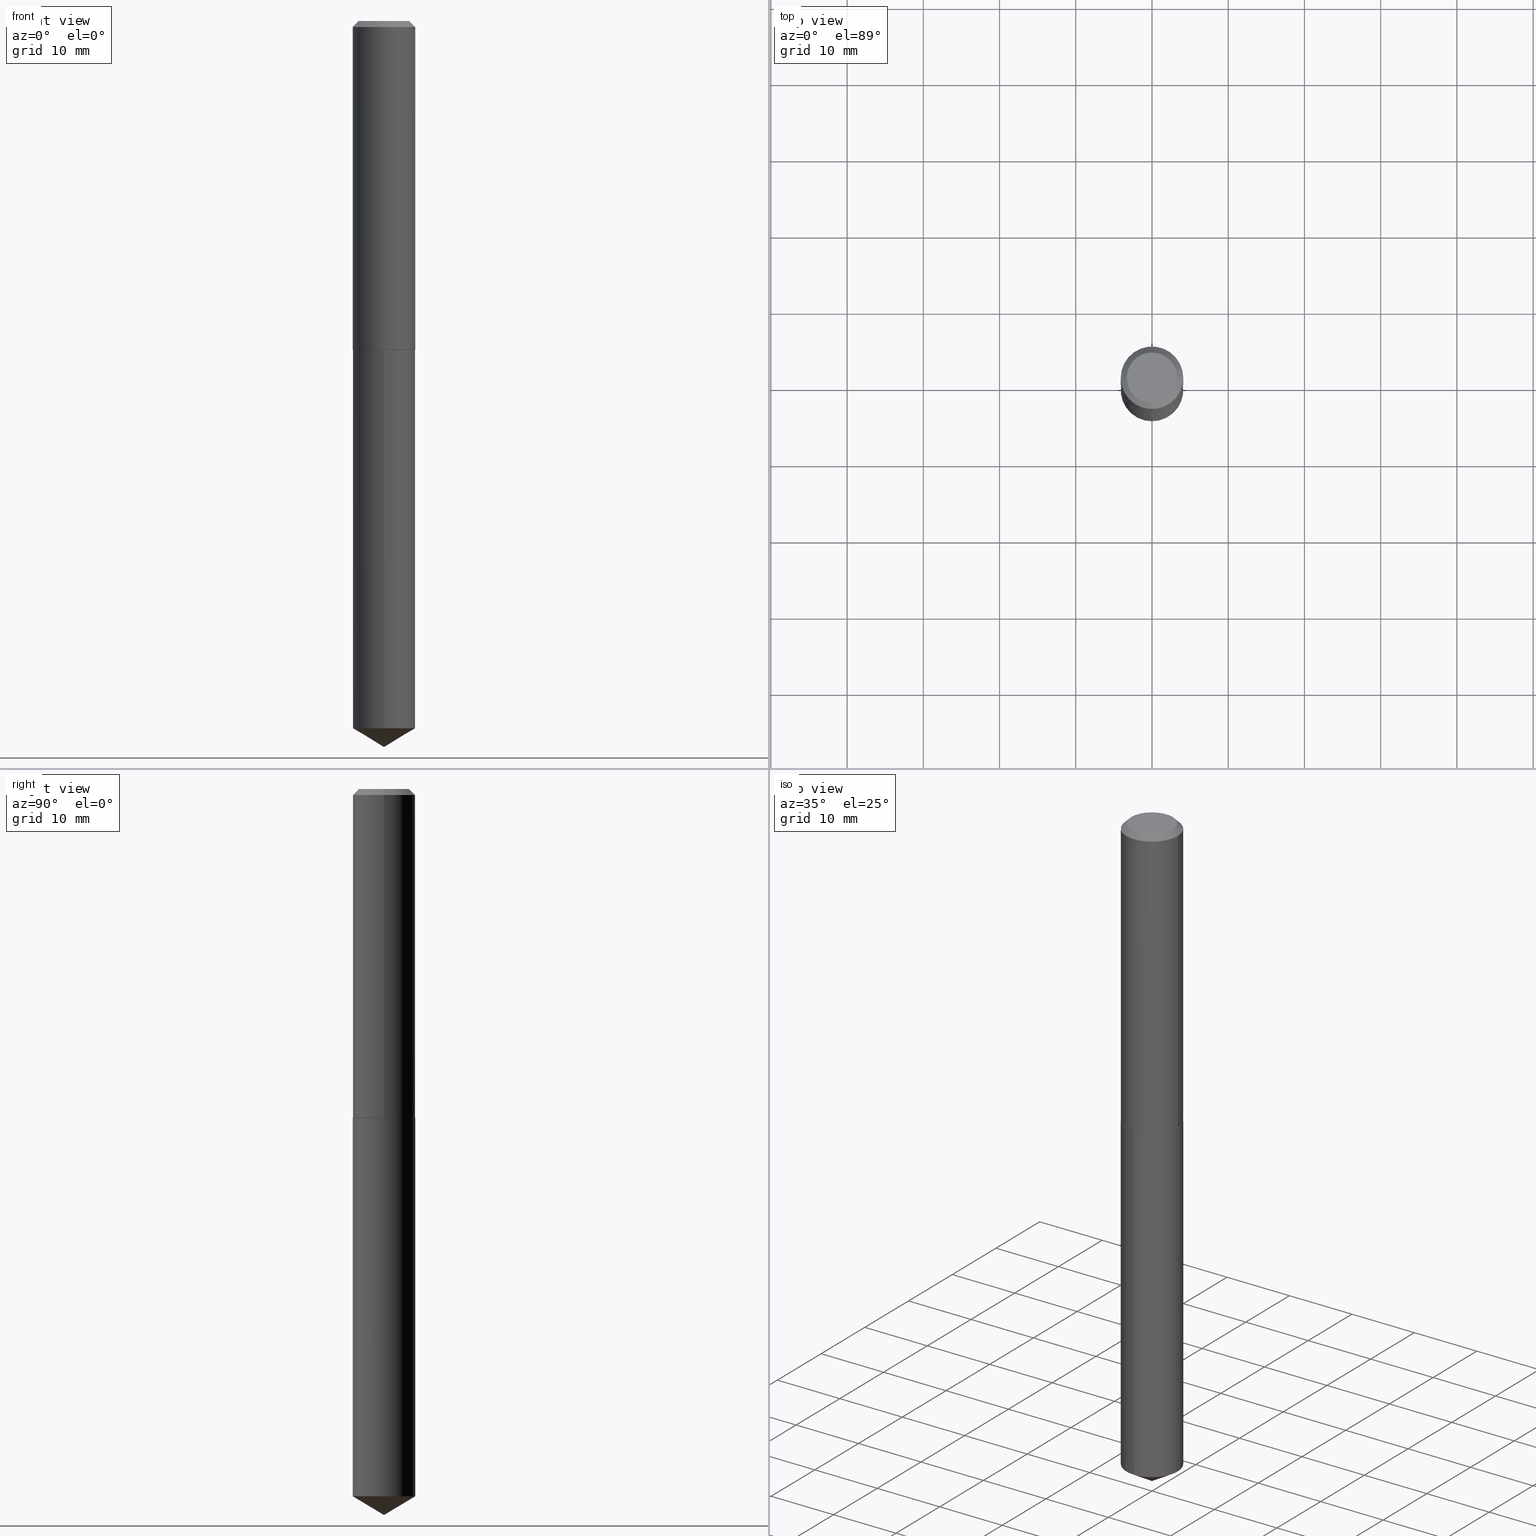
[diagram: canonical four-view strip — front | top / right | iso, engineering-drawing reading convention]
A machine part, canonical four-view strip (front | top / right | iso — engineering-drawing reading convention). The complete STEP part file that produces these views, byte-faithful:
ISO-10303-21;
HEADER;
FILE_DESCRIPTION (( 'STEP AP203' ),
    '1' );
FILE_NAME ('51216.STEP',
    '2024-04-22T18:39:43',
    ( '' ),
    ( '' ),
    'SwSTEP 2.0',
    'SolidWorks 2023',
    '' );
FILE_SCHEMA (( 'CONFIG_CONTROL_DESIGN' ));
ENDSEC;

DATA;
#1 = CARTESIAN_POINT ( 'NONE',  ( 4.152406032902361793E-29, -5.928535313355661989E-15, -1.697999999999999954 ) ) ;
#2 = DIRECTION ( 'NONE',  ( -2.445468806185136597E-29, 3.491481338843145583E-15, 1.000000000000000000 ) ) ;
#3 = CARTESIAN_POINT ( 'NONE',  ( 4.151183298499269552E-29, -5.926789572686240485E-15, -1.697500000000000231 ) ) ;
#4 = ORIENTED_EDGE ( 'NONE', *, *, #227, .F. ) ;
#5 = CARTESIAN_POINT ( 'NONE',  ( 0.1615000000000001990, -7.054538045132573600E-15, -1.697500000000000231 ) ) ;
#6 = CONICAL_SURFACE ( 'NONE', #164, 0.1615000000000001990, 0.7853981633973459164 ) ;
#7 = ORIENTED_EDGE ( 'NONE', *, *, #188, .T. ) ;
#8 = ADVANCED_FACE ( 'NONE', ( #92 ), #117, .F. ) ;
#9 = ORIENTED_EDGE ( 'NONE', *, *, #113, .T. ) ;
#10 = DIRECTION ( 'NONE',  ( -6.982962677686266711E-15, -1.000000000000000000, 3.383093490605898500E-15 ) ) ;
#11 = CARTESIAN_POINT ( 'NONE',  ( 4.152406032902361793E-29, -5.928535313355661989E-15, -1.697999999999999954 ) ) ;
#12 = AXIS2_PLACEMENT_3D ( 'NONE', #249, #367, #71 ) ;
#13 = ORIENTED_EDGE ( 'NONE', *, *, #166, .F. ) ;
#14 = PERSON_AND_ORGANIZATION ( #21, #36 ) ;
#15 = DIRECTION ( 'NONE',  ( -1.000000000000000000, 6.982962677686266711E-15, 0.000000000000000000 ) ) ;
#16 = CARTESIAN_POINT ( 'NONE',  ( 9.170819115654799481E-29, -1.309261302843134438E-14, -3.750000000000000000 ) ) ;
#17 = ORIENTED_EDGE ( 'NONE', *, *, #316, .F. ) ;
#18 = APPROVAL_DATE_TIME ( #288, #369 ) ;
#19 = VERTEX_POINT ( 'NONE', #210 ) ;
#20 = APPROVAL_ROLE ( '' ) ;
#21 = PERSON ( 'UNSPECIFIED', 'UNSPECIFIED', 'UNSPECIFIED', ('UNSPECIFIED'), ('UNSPECIFIED'), ('UNSPECIFIED') ) ;
#22 = AXIS2_PLACEMENT_3D ( 'NONE', #1, #331, #63 ) ;
#23 = APPROVAL_PERSON_ORGANIZATION ( #57, #382, #20 ) ;
#24 = ADVANCED_FACE ( 'NONE', ( #206 ), #326, .T. ) ;
#25 = DIRECTION ( 'NONE',  ( -2.445551110591778788E-29, 3.491363474248358107E-15, 1.000000000000000000 ) ) ;
#26 = ADVANCED_FACE ( 'NONE', ( #99 ), #124, .T. ) ;
#27 = COORDINATED_UNIVERSAL_TIME_OFFSET ( 5, 0, .BEHIND. ) ;
#28 = VERTEX_POINT ( 'NONE', #361 ) ;
#29 = PERSON_AND_ORGANIZATION ( #21, #36 ) ;
#30 = CARTESIAN_POINT ( 'NONE',  ( 7.642090019328604414E-31, -1.091087918388490513E-16, -0.03125000000000021511 ) ) ;
#31 = VECTOR ( 'NONE', #136, 39.37007874015748143 ) ;
#32 = CARTESIAN_POINT ( 'NONE',  ( -8.711086287524120432E-28, 1.243624417291543540E-13, 35.62007874015748143 ) ) ;
#33 = CARTESIAN_POINT ( 'NONE',  ( 7.642090019328604414E-31, -1.091087918388490513E-16, -0.03125000000000021511 ) ) ;
#34 = LINE ( 'NONE', #332, #149 ) ;
#35 = AXIS2_PLACEMENT_3D ( 'NONE', #307, #220, #282 ) ;
#36 = ORGANIZATION ( 'UNSPECIFIED', 'UNSPECIFIED', '' ) ;
#37 = CARTESIAN_POINT ( 'NONE',  ( 4.151183298499269552E-29, -5.926789572686240485E-15, -1.697500000000000231 ) ) ;
#38 = DIRECTION ( 'NONE',  ( -2.445551110591778788E-29, 3.491363474248358107E-15, 1.000000000000000000 ) ) ;
#39 = CC_DESIGN_DATE_AND_TIME_ASSIGNMENT ( #292, #325, ( #323 ) ) ;
#40 = ORIENTED_EDGE ( 'NONE', *, *, #64, .F. ) ;
#41 = ADVANCED_FACE ( 'NONE', ( #217 ), #208, .T. ) ;
#42 = APPLICATION_PROTOCOL_DEFINITION ( 'international standard', 'config_control_design', 1994, #306 ) ;
#43 = DIRECTION ( 'NONE',  ( -2.445551110591778788E-29, 3.491363474248358107E-15, 1.000000000000000000 ) ) ;
#44 = CARTESIAN_POINT ( 'NONE',  ( 9.170816664719170944E-29, -1.309261302843134438E-14, -3.750000000000000000 ) ) ;
#45 = ORIENTED_EDGE ( 'NONE', *, *, #81, .T. ) ;
#46 = DIRECTION ( 'NONE',  ( 1.000000000000000000, 0.000000000000000000, 0.000000000000000000 ) ) ;
#47 = CLOSED_SHELL ( 'NONE', ( #163, #24, #278, #173, #255, #26, #390, #8 ) ) ;
#48 = VECTOR ( 'NONE', #242, 39.37007874015748143 ) ;
#49 = EDGE_CURVE ( 'NONE', #70, #286, #328, .T. ) ;
#50 = EDGE_LOOP ( 'NONE', ( #226, #181, #381, #287 ) ) ;
#51 = EDGE_LOOP ( 'NONE', ( #308, #373, #56, #146 ) ) ;
#52 = EDGE_CURVE ( 'NONE', #138, #205, #34, .T. ) ;
#53 = APPLICATION_CONTEXT ( 'configuration controlled 3d designs of mechanical parts and assemblies' ) ;
#54 = ORIENTED_EDGE ( 'NONE', *, *, #123, .T. ) ;
#55 = AXIS2_PLACEMENT_3D ( 'NONE', #60, #333, #302 ) ;
#56 = ORIENTED_EDGE ( 'NONE', *, *, #126, .F. ) ;
#57 = PERSON_AND_ORGANIZATION ( #21, #36 ) ;
#58 = EDGE_LOOP ( 'NONE', ( #352, #195, #171, #261 ) ) ;
#59 = DATE_TIME_ROLE ( 'creation_date' ) ;
#60 = CARTESIAN_POINT ( 'NONE',  ( -1.048192441068269648E-47, 1.496541006063948366E-33, 4.286263797015758030E-19 ) ) ;
#61 = CALENDAR_DATE ( 2024, 22, 4 ) ;
#62 = LOCAL_TIME ( 14, 39, 43.00000000000000000, #27 ) ;
#63 = DIRECTION ( 'NONE',  ( 1.000000000000000000, -6.982962677686266711E-15, 0.000000000000000000 ) ) ;
#64 = EDGE_CURVE ( 'NONE', #116, #138, #299, .T. ) ;
#65 = CARTESIAN_POINT ( 'NONE',  ( 0.000000000000000000, 0.000000000000000000, 0.000000000000000000 ) ) ;
#66 = DIRECTION ( 'NONE',  ( -5.985567269335963368E-15, -0.8571673007021132218, 0.5150380749100526012 ) ) ;
#67 = MANIFOLD_SOLID_BREP ( 'Body-Move/Copy2[1]', #168 ) ;
#68 = CARTESIAN_POINT ( 'NONE',  ( -0.1615000000000000047, -1.870422664009981579E-15, -0.03125000000000021511 ) ) ;
#69 = ADVANCED_BREP_SHAPE_REPRESENTATION ( '51216', ( #67, #337, #215 ), #386 ) ;
#70 = VERTEX_POINT ( 'NONE', #300 ) ;
#71 = DIRECTION ( 'NONE',  ( -6.982962677686266711E-15, -1.000000000000000000, 3.383093490605898500E-15 ) ) ;
#72 = AXIS2_PLACEMENT_3D ( 'NONE', #37, #2, #130 ) ;
#73 = DIRECTION ( 'NONE',  ( -2.445468806185136597E-29, 3.491481338843145583E-15, 1.000000000000000000 ) ) ;
#74 = MECHANICAL_CONTEXT ( 'NONE', #306, 'mechanical' ) ;
#75 = EDGE_LOOP ( 'NONE', ( #4, #320, #9, #17 ) ) ;
#76 =( LENGTH_UNIT ( ) NAMED_UNIT ( * ) SI_UNIT ( $, .METRE. ) );
#77 = DIRECTION ( 'NONE',  ( -2.445551110591778788E-29, 3.491363474248358107E-15, 1.000000000000000000 ) ) ;
#78 = CIRCLE ( 'NONE', #134, 0.1615000000000001990 ) ;
#79 = CC_DESIGN_APPROVAL ( #382, ( #140 ) ) ;
#80 = ORIENTED_EDGE ( 'NONE', *, *, #318, .F. ) ;
#81 = EDGE_CURVE ( 'NONE', #324, #28, #94, .T. ) ;
#82 = EDGE_CURVE ( 'NONE', #153, #286, #301, .T. ) ;
#83 = DIRECTION ( 'NONE',  ( -1.000000000000000000, 6.982962677686265922E-15, -4.876176775795935793E-29 ) ) ;
#84 = APPROVAL_STATUS ( 'not_yet_approved' ) ;
#85 = DIRECTION ( 'NONE',  ( 6.090539988449799735E-15, 0.8571673007021168855, 0.5150380749100466060 ) ) ;
#86 = ORIENTED_EDGE ( 'NONE', *, *, #275, .T. ) ;
#87 = CIRCLE ( 'NONE', #346, 0.1615000000000000047 ) ;
#88 = DATE_AND_TIME ( #374, #98 ) ;
#89 = CIRCLE ( 'NONE', #303, 0.1610000000000004206 ) ;
#90 = AXIS2_PLACEMENT_3D ( 'NONE', #112, #108, #15 ) ;
#91 = PRODUCT_DEFINITION_SHAPE ( 'NONE', 'NONE',  #140 ) ;
#92 = FACE_OUTER_BOUND ( 'NONE', #263, .T. ) ;
#93 = APPROVAL_ROLE ( '' ) ;
#94 = LINE ( 'NONE', #96, #177 ) ;
#95 = APPROVAL_STATUS ( 'not_yet_approved' ) ;
#96 = CARTESIAN_POINT ( 'NONE',  ( 9.170537158954214009E-29, -1.309301329659524274E-14, -3.750000000000000000 ) ) ;
#97 = AXIS2_PLACEMENT_3D ( 'NONE', #65, #162, #125 ) ;
#98 = LOCAL_TIME ( 14, 39, 43.00000000000000000, #182 ) ;
#99 = FACE_OUTER_BOUND ( 'NONE', #253, .T. ) ;
#100 = DIMENSIONAL_EXPONENTS ( 1.000000000000000000, 0.000000000000000000, 0.000000000000000000, 0.000000000000000000, 0.000000000000000000, 0.000000000000000000, 0.000000000000000000 ) ;
#101 = CARTESIAN_POINT ( 'NONE',  ( -0.1615000000000001990, -4.779263054433677272E-15, -1.697500000000000231 ) ) ;
#102 = CIRCLE ( 'NONE', #228, 0.1615000000000000047 ) ;
#103 = EDGE_CURVE ( 'NONE', #230, #28, #314, .T. ) ;
#104 = LOCAL_TIME ( 14, 39, 43.00000000000000000, #262 ) ;
#105 = CARTESIAN_POINT ( 'NONE',  ( 4.152406032902361793E-29, -5.928535313355661989E-15, -1.697999999999999954 ) ) ;
#106 = DIRECTION ( 'NONE',  ( -2.445551110591778788E-29, 3.491363474248358107E-15, 1.000000000000000000 ) ) ;
#107 = ORIENTED_EDGE ( 'NONE', *, *, #126, .T. ) ;
#108 = DIRECTION ( 'NONE',  ( 2.445468806185136597E-29, -3.491481338843145583E-15, -1.000000000000000000 ) ) ;
#109 = ORIENTED_EDGE ( 'NONE', *, *, #297, .F. ) ;
#110 = DIRECTION ( 'NONE',  ( -6.982962677686269077E-15, -1.000000000000000000, 3.468864327941552799E-15 ) ) ;
#111 = CARTESIAN_POINT ( 'NONE',  ( 4.151183298499269552E-29, -5.926789572686240485E-15, -1.697500000000000231 ) ) ;
#112 = CARTESIAN_POINT ( 'NONE',  ( 7.642090019328604414E-31, -1.091087918388490513E-16, -0.03125000000000021511 ) ) ;
#113 = EDGE_CURVE ( 'NONE', #28, #145, #158, .T. ) ;
#114 = DIRECTION ( 'NONE',  ( -2.445468806185136597E-29, 3.491481338843145583E-15, 1.000000000000000000 ) ) ;
#115 = CIRCLE ( 'NONE', #330, 0.1615000000000000047 ) ;
#116 = VERTEX_POINT ( 'NONE', #191 ) ;
#117 = PLANE ( 'NONE',  #353 ) ;
#118 = SECURITY_CLASSIFICATION_LEVEL ( 'unclassified' ) ;
#119 = DIRECTION ( 'NONE',  ( -6.982962677686266711E-15, -1.000000000000000000, 3.383093490605898500E-15 ) ) ;
#120 = ORIENTED_EDGE ( 'NONE', *, *, #131, .F. ) ;
#121 = FACE_OUTER_BOUND ( 'NONE', #238, .T. ) ;
#122 = EDGE_LOOP ( 'NONE', ( #385, #175, #86, #338 ) ) ;
#123 = EDGE_CURVE ( 'NONE', #153, #199, #222, .T. ) ;
#124 = CYLINDRICAL_SURFACE ( 'NONE', #97, 0.1615000000000001157 ) ;
#125 = DIRECTION ( 'NONE',  ( 1.000000000000000000, -6.982962677686265922E-15, 4.876176775795935232E-29 ) ) ;
#126 = EDGE_CURVE ( 'NONE', #70, #138, #161, .T. ) ;
#127 = AXIS2_PLACEMENT_3D ( 'NONE', #388, #43, #10 ) ;
#128 = LOCAL_TIME ( 14, 39, 43.00000000000000000, #241 ) ;
#129 = DIRECTION ( 'NONE',  ( -6.982962677686269077E-15, -1.000000000000000000, 3.468864327941552799E-15 ) ) ;
#130 = DIRECTION ( 'NONE',  ( 1.000000000000000000, -6.982962677686266711E-15, 0.000000000000000000 ) ) ;
#131 = EDGE_CURVE ( 'NONE', #116, #19, #309, .T. ) ;
#132 = DIRECTION ( 'NONE',  ( 1.000000000000000000, -6.982962677686266711E-15, 0.000000000000000000 ) ) ;
#133 = ORIENTED_EDGE ( 'NONE', *, *, #200, .T. ) ;
#134 = AXIS2_PLACEMENT_3D ( 'NONE', #3, #279, #132 ) ;
#135 = CIRCLE ( 'NONE', #229, 0.1302500000000000047 ) ;
#136 = DIRECTION ( 'NONE',  ( -2.445551110591778788E-29, 3.491363474248358107E-15, 1.000000000000000000 ) ) ;
#137 = DIRECTION ( 'NONE',  ( 6.982962677686265922E-15, 1.000000000000000000, -3.491363474248358107E-15 ) ) ;
#138 = VERTEX_POINT ( 'NONE', #101 ) ;
#139 = PERSON_AND_ORGANIZATION_ROLE ( 'design_owner' ) ;
#140 = PRODUCT_DEFINITION ( 'UNKNOWN', '', #236, #380 ) ;
#141 = CONICAL_SURFACE ( 'NONE', #284, 0.1615000000000001990, 0.7853981633973459164 ) ;
#142 = LINE ( 'NONE', #5, #202 ) ;
#143 = CC_DESIGN_APPROVAL ( #221, ( #236 ) ) ;
#144 = LOCAL_TIME ( 14, 39, 43.00000000000000000, #180 ) ;
#145 = VERTEX_POINT ( 'NONE', #334 ) ;
#146 = ORIENTED_EDGE ( 'NONE', *, *, #200, .F. ) ;
#147 = ORIENTED_EDGE ( 'NONE', *, *, #311, .F. ) ;
#148 = APPROVAL_ROLE ( '' ) ;
#149 = VECTOR ( 'NONE', #358, 39.37007874015748143 ) ;
#150 = ORIENTED_EDGE ( 'NONE', *, *, #103, .F. ) ;
#151 = APPROVAL_STATUS ( 'not_yet_approved' ) ;
#152 = DIRECTION ( 'NONE',  ( -0.7071067811865451302, 2.468850131082231817E-15, -0.7071067811865499042 ) ) ;
#153 = VERTEX_POINT ( 'NONE', #389 ) ;
#154 = ORIENTED_EDGE ( 'NONE', *, *, #216, .F. ) ;
#155 = CALENDAR_DATE ( 2024, 22, 4 ) ;
#156 = DIRECTION ( 'NONE',  ( -2.445468806185136597E-29, 3.491481338843145583E-15, 1.000000000000000000 ) ) ;
#157 = PRODUCT_RELATED_PRODUCT_CATEGORY ( 'detail', '', ( #356 ) ) ;
#158 = LINE ( 'NONE', #273, #48 ) ;
#159 = DIRECTION ( 'NONE',  ( 1.000000000000000000, -6.982962677686266711E-15, 0.000000000000000000 ) ) ;
#160 = DIRECTION ( 'NONE',  ( 0.7071067811865451302, -7.319954787623248157E-15, -0.7071067811865499042 ) ) ;
#161 = CIRCLE ( 'NONE', #72, 0.1615000000000001990 ) ;
#162 = DIRECTION ( 'NONE',  ( -2.445468806185136597E-29, 3.491481338843145583E-15, 1.000000000000000000 ) ) ;
#163 = ADVANCED_FACE ( 'NONE', ( #189 ), #364, .T. ) ;
#164 = AXIS2_PLACEMENT_3D ( 'NONE', #310, #319, #257 ) ;
#165 = DIRECTION ( 'NONE',  ( -6.982962677686266711E-15, -1.000000000000000000, 3.383093490605898500E-15 ) ) ;
#166 = EDGE_CURVE ( 'NONE', #205, #286, #298, .T. ) ;
#167 = PLANE ( 'NONE',  #35 ) ;
#168 = CLOSED_SHELL ( 'NONE', ( #250, #321, #41, #169, #362 ) ) ;
#169 = ADVANCED_FACE ( 'NONE', ( #268 ), #271, .T. ) ;
#170 = LINE ( 'NONE', #201, #247 ) ;
#171 = ORIENTED_EDGE ( 'NONE', *, *, #318, .T. ) ;
#172 = CARTESIAN_POINT ( 'NONE',  ( 0.000000000000000000, 0.000000000000000000, 0.000000000000000000 ) ) ;
#173 = ADVANCED_FACE ( 'NONE', ( #223 ), #167, .F. ) ;
#174 = DIRECTION ( 'NONE',  ( 1.000000000000000000, -6.982962677686266711E-15, 0.000000000000000000 ) ) ;
#175 = ORIENTED_EDGE ( 'NONE', *, *, #339, .F. ) ;
#176 = FACE_OUTER_BOUND ( 'NONE', #51, .T. ) ;
#177 = VECTOR ( 'NONE', #66, 39.37007874015748143 ) ;
#178 = ORIENTED_EDGE ( 'NONE', *, *, #49, .F. ) ;
#179 = CONICAL_SURFACE ( 'NONE', #90, 0.1615000000000000047, 0.7853981633974449483 ) ;
#180 = COORDINATED_UNIVERSAL_TIME_OFFSET ( 5, 0, .BEHIND. ) ;
#181 = ORIENTED_EDGE ( 'NONE', *, *, #227, .T. ) ;
#182 = COORDINATED_UNIVERSAL_TIME_OFFSET ( 5, 0, .BEHIND. ) ;
#183 = DIRECTION ( 'NONE',  ( 2.445468806185136597E-29, -3.491481338843145583E-15, -1.000000000000000000 ) ) ;
#184 = DATE_AND_TIME ( #155, #62 ) ;
#185 = DIRECTION ( 'NONE',  ( -2.445468806185136877E-29, 3.491481338843145188E-15, 1.000000000000000000 ) ) ;
#186 = VECTOR ( 'NONE', #85, 39.37007874015748143 ) ;
#187 = DATE_AND_TIME ( #379, #104 ) ;
#188 = EDGE_CURVE ( 'NONE', #145, #312, #102, .T. ) ;
#189 = FACE_OUTER_BOUND ( 'NONE', #58, .T. ) ;
#190 = DIRECTION ( 'NONE',  ( 1.000000000000000000, -6.982962677686265922E-15, 4.876176775795935232E-29 ) ) ;
#191 = CARTESIAN_POINT ( 'NONE',  ( -0.1610000000000004206, -4.781912281607787684E-15, -1.697999999999999954 ) ) ;
#192 = VECTOR ( 'NONE', #185, 39.37007874015748143 ) ;
#193 = DIRECTION ( 'NONE',  ( 1.000000000000000000, -6.982962677686266711E-15, 0.000000000000000000 ) ) ;
#194 = DIRECTION ( 'NONE',  ( -2.445468806185136597E-29, 3.491481338843145583E-15, 1.000000000000000000 ) ) ;
#195 = ORIENTED_EDGE ( 'NONE', *, *, #82, .T. ) ;
#196 = AXIS2_PLACEMENT_3D ( 'NONE', #291, #276, #190 ) ;
#197 = FACE_OUTER_BOUND ( 'NONE', #256, .T. ) ;
#198 = ORIENTED_EDGE ( 'NONE', *, *, #316, .T. ) ;
#199 = VERTEX_POINT ( 'NONE', #336 ) ;
#200 = EDGE_CURVE ( 'NONE', #19, #70, #142, .T. ) ;
#201 = CARTESIAN_POINT ( 'NONE',  ( -0.1615000000000000047, 1.018639680607483028E-15, -0.03125000000000021511 ) ) ;
#202 = VECTOR ( 'NONE', #225, 39.37007874015748143 ) ;
#203 = APPROVAL_PERSON_ORGANIZATION ( #29, #221, #148 ) ;
#204 = ORIENTED_EDGE ( 'NONE', *, *, #339, .T. ) ;
#205 = VERTEX_POINT ( 'NONE', #68 ) ;
#206 = FACE_OUTER_BOUND ( 'NONE', #235, .T. ) ;
#207 = LINE ( 'NONE', #16, #186 ) ;
#208 = CONICAL_SURFACE ( 'NONE', #252, 65.52281426576921319, 1.029744258676659863 ) ;
#209 = PERSON_AND_ORGANIZATION_ROLE ( 'design_supplier' ) ;
#210 = CARTESIAN_POINT ( 'NONE',  ( 0.1610000000000004206, -7.052792304463153675E-15, -1.697999999999999954 ) ) ;
#211 = DIRECTION ( 'NONE',  ( -6.982962677686266711E-15, -1.000000000000000000, 3.383093490605898500E-15 ) ) ;
#212 = APPROVAL_DATE_TIME ( #187, #382 ) ;
#213 = CARTESIAN_POINT ( 'NONE',  ( 0.1615000000000001157, -1.127748472446332721E-15, 7.875025492910441462E-30 ) ) ;
#214 = AXIS2_PLACEMENT_3D ( 'NONE', #218, #240, #211 ) ;
#215 = AXIS2_PLACEMENT_3D ( 'NONE', #172, #283, #46 ) ;
#216 = EDGE_CURVE ( 'NONE', #19, #116, #89, .T. ) ;
#217 = FACE_OUTER_BOUND ( 'NONE', #248, .T. ) ;
#218 = CARTESIAN_POINT ( 'NONE',  ( 8.933363102137640764E-29, -1.275401477734378135E-14, -3.652961010027050204 ) ) ;
#219 = VECTOR ( 'NONE', #160, 39.37007874015748143 ) ;
#220 = DIRECTION ( 'NONE',  ( -2.438088387897960049E-29, 3.491481338843145188E-15, 1.000000000000000000 ) ) ;
#221 = APPROVAL ( #151, 'UNSPECIFIED' ) ;
#222 = CIRCLE ( 'NONE', #55, 0.1302500000000000047 ) ;
#223 = FACE_OUTER_BOUND ( 'NONE', #342, .T. ) ;
#224 =( CONVERSION_BASED_UNIT ( 'INCH', #281 ) LENGTH_UNIT ( ) NAMED_UNIT ( #100 ) );
#225 = DIRECTION ( 'NONE',  ( 0.7071067811864750752, -2.468850131081498176E-15, 0.7071067811866199593 ) ) ;
#226 = ORIENTED_EDGE ( 'NONE', *, *, #297, .T. ) ;
#227 = EDGE_CURVE ( 'NONE', #230, #312, #305, .T. ) ;
#228 = AXIS2_PLACEMENT_3D ( 'NONE', #11, #38, #165 ) ;
#229 = AXIS2_PLACEMENT_3D ( 'NONE', #254, #73, #371 ) ;
#230 = VERTEX_POINT ( 'NONE', #363 ) ;
#231 = PERSON_AND_ORGANIZATION_ROLE ( 'classification_officer' ) ;
#232 = CARTESIAN_POINT ( 'NONE',  ( -5.240962205341348242E-48, 7.482705030319741831E-34, 2.143131898507879015E-19 ) ) ;
#233 = EDGE_CURVE ( 'NONE', #138, #70, #78, .T. ) ;
#234 = PERSON_AND_ORGANIZATION ( #21, #36 ) ;
#235 = EDGE_LOOP ( 'NONE', ( #107, #280, #80, #178 ) ) ;
#236 = PRODUCT_DEFINITION_FORMATION_WITH_SPECIFIED_SOURCE ( 'ANY', '', #356, .NOT_KNOWN. ) ;
#237 = CC_DESIGN_DATE_AND_TIME_ASSIGNMENT ( #184, #59, ( #140 ) ) ;
#238 = EDGE_LOOP ( 'NONE', ( #348, #258, #109 ) ) ;
#239 = SHAPE_DEFINITION_REPRESENTATION ( #91, #69 ) ;
#240 = DIRECTION ( 'NONE',  ( -2.445551110591778788E-29, 3.491363474248358107E-15, 1.000000000000000000 ) ) ;
#241 = COORDINATED_UNIVERSAL_TIME_OFFSET ( 5, 0, .BEHIND. ) ;
#242 = DIRECTION ( 'NONE',  ( -2.445551110591778788E-29, 3.491363474248358107E-15, 1.000000000000000000 ) ) ;
#243 = APPROVAL_PERSON_ORGANIZATION ( #350, #369, #93 ) ;
#244 = DIRECTION ( 'NONE',  ( -0.7071067811864750752, 7.493145998870092258E-15, 0.7071067811866199593 ) ) ;
#245 = CARTESIAN_POINT ( 'NONE',  ( 0.1615000000000000047, -1.217079218478951328E-15, -0.03125000000000021511 ) ) ;
#246 = CC_DESIGN_PERSON_AND_ORGANIZATION_ASSIGNMENT ( #294, #209, ( #236 ) ) ;
#247 = VECTOR ( 'NONE', #152, 39.37007874015748143 ) ;
#248 = EDGE_LOOP ( 'NONE', ( #147, #45, #150 ) ) ;
#249 = CARTESIAN_POINT ( 'NONE',  ( 4.152406032902361793E-29, -5.928535313355661989E-15, -1.697999999999999954 ) ) ;
#250 = ADVANCED_FACE ( 'NONE', ( #340 ), #366, .T. ) ;
#251 = PLANE ( 'NONE',  #267 ) ;
#252 = AXIS2_PLACEMENT_3D ( 'NONE', #32, #270, #129 ) ;
#253 = EDGE_LOOP ( 'NONE', ( #365, #355, #317, #13 ) ) ;
#254 = CARTESIAN_POINT ( 'NONE',  ( -1.048192441068269648E-47, 1.496541006063948366E-33, 4.286263797015758030E-19 ) ) ;
#255 = ADVANCED_FACE ( 'NONE', ( #197 ), #6, .T. ) ;
#256 = EDGE_LOOP ( 'NONE', ( #40, #378, #133, #293 ) ) ;
#257 = DIRECTION ( 'NONE',  ( 1.000000000000000000, -6.982962677686266711E-15, 0.000000000000000000 ) ) ;
#258 = ORIENTED_EDGE ( 'NONE', *, *, #311, .T. ) ;
#259 = APPLICATION_PROTOCOL_DEFINITION ( 'international standard', 'config_control_design', 1994, #53 ) ;
#260 = AXIS2_PLACEMENT_3D ( 'NONE', #384, #114, #174 ) ;
#261 = ORIENTED_EDGE ( 'NONE', *, *, #275, .F. ) ;
#262 = COORDINATED_UNIVERSAL_TIME_OFFSET ( 5, 0, .BEHIND. ) ;
#263 = EDGE_LOOP ( 'NONE', ( #204, #54 ) ) ;
#264 = DIRECTION ( 'NONE',  ( -6.982962677686266711E-15, -1.000000000000000000, 3.383093490605898500E-15 ) ) ;
#265 = EDGE_LOOP ( 'NONE', ( #7, #198 ) ) ;
#266 = APPROVAL_DATE_TIME ( #88, #221 ) ;
#267 = AXIS2_PLACEMENT_3D ( 'NONE', #343, #368, #137 ) ;
#268 = FACE_OUTER_BOUND ( 'NONE', #75, .T. ) ;
#269 = PERSON_AND_ORGANIZATION ( #21, #36 ) ;
#270 = DIRECTION ( 'NONE',  ( -2.445551110591778788E-29, 3.491363474248358107E-15, 1.000000000000000000 ) ) ;
#271 = CYLINDRICAL_SURFACE ( 'NONE', #127, 0.1615000000000000047 ) ;
#272 = CC_DESIGN_PERSON_AND_ORGANIZATION_ASSIGNMENT ( #14, #139, ( #356 ) ) ;
#273 = CARTESIAN_POINT ( 'NONE',  ( -1.127748472446290517E-15, -0.1615000000000059444, -1.697999999999999510 ) ) ;
#274 = VECTOR ( 'NONE', #244, 39.37007874015748143 ) ;
#275 = EDGE_CURVE ( 'NONE', #199, #205, #170, .T. ) ;
#276 = DIRECTION ( 'NONE',  ( -2.445468806185136597E-29, 3.491481338843145583E-15, 1.000000000000000000 ) ) ;
#277 = CARTESIAN_POINT ( 'NONE',  ( 1.147526518252603051E-15, 0.1614999999999940650, -1.698000000000000620 ) ) ;
#278 = ADVANCED_FACE ( 'NONE', ( #176 ), #141, .T. ) ;
#279 = DIRECTION ( 'NONE',  ( -2.445468806185136597E-29, 3.491481338843145583E-15, 1.000000000000000000 ) ) ;
#280 = ORIENTED_EDGE ( 'NONE', *, *, #52, .T. ) ;
#281 = LENGTH_MEASURE_WITH_UNIT ( LENGTH_MEASURE( 0.02539999999999999897 ), #76 );
#282 = DIRECTION ( 'NONE',  ( 1.000000000000000000, -6.982962677686265922E-15, 4.876176775795935793E-29 ) ) ;
#283 = DIRECTION ( 'NONE',  ( 0.000000000000000000, 0.000000000000000000, 1.000000000000000000 ) ) ;
#284 = AXIS2_PLACEMENT_3D ( 'NONE', #111, #290, #351 ) ;
#285 = FACE_OUTER_BOUND ( 'NONE', #265, .T. ) ;
#286 = VERTEX_POINT ( 'NONE', #344 ) ;
#287 = ORIENTED_EDGE ( 'NONE', *, *, #113, .F. ) ;
#288 = DATE_AND_TIME ( #61, #128 ) ;
#289 = UNCERTAINTY_MEASURE_WITH_UNIT (LENGTH_MEASURE( 1.000000000000000082E-05 ), #224, 'distance_accuracy_value', 'NONE');
#290 = DIRECTION ( 'NONE',  ( -2.445468806185136597E-29, 3.491481338843145583E-15, 1.000000000000000000 ) ) ;
#291 = CARTESIAN_POINT ( 'NONE',  ( 0.000000000000000000, 0.000000000000000000, 0.000000000000000000 ) ) ;
#292 = DATE_AND_TIME ( #327, #144 ) ;
#293 = ORIENTED_EDGE ( 'NONE', *, *, #233, .F. ) ;
#294 = PERSON_AND_ORGANIZATION ( #21, #36 ) ;
#295 = DIRECTION ( 'NONE',  ( -1.000000000000000000, 6.982962677686266711E-15, 0.000000000000000000 ) ) ;
#296 = PERSON_AND_ORGANIZATION_ROLE ( 'creator' ) ;
#297 = EDGE_CURVE ( 'NONE', #28, #230, #87, .T. ) ;
#298 = CIRCLE ( 'NONE', #335, 0.1615000000000000047 ) ;
#299 = LINE ( 'NONE', #360, #274 ) ;
#300 = CARTESIAN_POINT ( 'NONE',  ( 0.1615000000000001990, -7.054538045132573600E-15, -1.697500000000000231 ) ) ;
#301 = LINE ( 'NONE', #245, #219 ) ;
#302 = DIRECTION ( 'NONE',  ( 1.000000000000000000, -6.982962677686266711E-15, 4.876168088827840652E-29 ) ) ;
#303 = AXIS2_PLACEMENT_3D ( 'NONE', #105, #194, #193 ) ;
#304 = CONICAL_SURFACE ( 'NONE', #315, 65.52281426576921319, 1.029744258676659863 ) ;
#305 = LINE ( 'NONE', #277, #31 ) ;
#306 = APPLICATION_CONTEXT ( 'configuration controlled 3d designs of mechanical parts and assemblies' ) ;
#307 = CARTESIAN_POINT ( 'NONE',  ( 4.152406032902361793E-29, -5.928535313355661989E-15, -1.697999999999999954 ) ) ;
#308 = ORIENTED_EDGE ( 'NONE', *, *, #216, .T. ) ;
#309 = CIRCLE ( 'NONE', #22, 0.1610000000000004206 ) ;
#310 = CARTESIAN_POINT ( 'NONE',  ( 4.151183298499269552E-29, -5.926789572686240485E-15, -1.697500000000000231 ) ) ;
#311 = EDGE_CURVE ( 'NONE', #324, #230, #207, .T. ) ;
#312 = VERTEX_POINT ( 'NONE', #372 ) ;
#313 =( NAMED_UNIT ( * ) SI_UNIT ( $, .STERADIAN. ) SOLID_ANGLE_UNIT ( ) );
#314 = CIRCLE ( 'NONE', #214, 0.1615000000000000047 ) ;
#315 = AXIS2_PLACEMENT_3D ( 'NONE', #341, #106, #110 ) ;
#316 = EDGE_CURVE ( 'NONE', #312, #145, #115, .T. ) ;
#317 = ORIENTED_EDGE ( 'NONE', *, *, #49, .T. ) ;
#318 = EDGE_CURVE ( 'NONE', #286, #205, #375, .T. ) ;
#319 = DIRECTION ( 'NONE',  ( -2.445468806185136597E-29, 3.491481338843145583E-15, 1.000000000000000000 ) ) ;
#320 = ORIENTED_EDGE ( 'NONE', *, *, #103, .T. ) ;
#321 = ADVANCED_FACE ( 'NONE', ( #121 ), #304, .T. ) ;
#322 = AXIS2_PLACEMENT_3D ( 'NONE', #33, #183, #295 ) ;
#323 = SECURITY_CLASSIFICATION ( '', '', #118 ) ;
#324 = VERTEX_POINT ( 'NONE', #44 ) ;
#325 = DATE_TIME_ROLE ( 'classification_date' ) ;
#326 = CYLINDRICAL_SURFACE ( 'NONE', #196, 0.1615000000000001157 ) ;
#327 = CALENDAR_DATE ( 2024, 22, 4 ) ;
#328 = LINE ( 'NONE', #213, #192 ) ;
#329 = CC_DESIGN_PERSON_AND_ORGANIZATION_ASSIGNMENT ( #234, #231, ( #323 ) ) ;
#330 = AXIS2_PLACEMENT_3D ( 'NONE', #377, #77, #264 ) ;
#331 = DIRECTION ( 'NONE',  ( -2.445468806185136597E-29, 3.491481338843145583E-15, 1.000000000000000000 ) ) ;
#332 = CARTESIAN_POINT ( 'NONE',  ( -0.1615000000000001157, 1.147526518252562622E-15, -7.944080170761677510E-30 ) ) ;
#333 = DIRECTION ( 'NONE',  ( -2.445468806185136597E-29, 3.491481338843145583E-15, 1.000000000000000000 ) ) ;
#334 = CARTESIAN_POINT ( 'NONE',  ( -1.127748472446290517E-15, -0.1615000000000059444, -1.697999999999999510 ) ) ;
#335 = AXIS2_PLACEMENT_3D ( 'NONE', #30, #156, #159 ) ;
#336 = CARTESIAN_POINT ( 'NONE',  ( -0.1302500000000000047, 9.640852846880594641E-16, 4.286263796950244635E-19 ) ) ;
#337 = MANIFOLD_SOLID_BREP ( 'Body-Move/Copy2[2]', #47 ) ;
#338 = ORIENTED_EDGE ( 'NONE', *, *, #166, .T. ) ;
#339 = EDGE_CURVE ( 'NONE', #199, #153, #135, .T. ) ;
#340 = FACE_OUTER_BOUND ( 'NONE', #50, .T. ) ;
#341 = CARTESIAN_POINT ( 'NONE',  ( -8.711086287524120432E-28, 1.243624417291543540E-13, 35.62007874015748143 ) ) ;
#342 = EDGE_LOOP ( 'NONE', ( #154, #120 ) ) ;
#343 = CARTESIAN_POINT ( 'NONE',  ( 4.152406032902361793E-29, -5.928535313355661989E-15, -1.697999999999999954 ) ) ;
#344 = CARTESIAN_POINT ( 'NONE',  ( 0.1615000000000000047, -1.236857264285181230E-15, -0.03125000000000021511 ) ) ;
#345 = FACE_OUTER_BOUND ( 'NONE', #122, .T. ) ;
#346 = AXIS2_PLACEMENT_3D ( 'NONE', #347, #25, #119 ) ;
#347 = CARTESIAN_POINT ( 'NONE',  ( 8.933363102137640764E-29, -1.275401477734378135E-14, -3.652961010027050204 ) ) ;
#348 = ORIENTED_EDGE ( 'NONE', *, *, #81, .F. ) ;
#349 = DIRECTION ( 'NONE',  ( 2.438088387897960049E-29, -3.491481338843145188E-15, -1.000000000000000000 ) ) ;
#350 = PERSON_AND_ORGANIZATION ( #21, #36 ) ;
#351 = DIRECTION ( 'NONE',  ( 1.000000000000000000, -6.982962677686266711E-15, 0.000000000000000000 ) ) ;
#352 = ORIENTED_EDGE ( 'NONE', *, *, #123, .F. ) ;
#353 = AXIS2_PLACEMENT_3D ( 'NONE', #232, #349, #83 ) ;
#354 = CC_DESIGN_APPROVAL ( #369, ( #323 ) ) ;
#355 = ORIENTED_EDGE ( 'NONE', *, *, #233, .T. ) ;
#356 = PRODUCT ( '51216', '51216', '', ( #74 ) ) ;
#357 = PERSON_AND_ORGANIZATION_ROLE ( 'creator' ) ;
#358 = DIRECTION ( 'NONE',  ( -2.445468806185136877E-29, 3.491481338843145188E-15, 1.000000000000000000 ) ) ;
#359 = CC_DESIGN_PERSON_AND_ORGANIZATION_ASSIGNMENT ( #383, #357, ( #140 ) ) ;
#360 = CARTESIAN_POINT ( 'NONE',  ( -0.1615000000000001990, -4.779263054433677272E-15, -1.697500000000000231 ) ) ;
#361 = CARTESIAN_POINT ( 'NONE',  ( -1.127748472446242790E-15, -0.1615000000000127445, -3.652961010027049760 ) ) ;
#362 = ADVANCED_FACE ( 'NONE', ( #285 ), #251, .F. ) ;
#363 = CARTESIAN_POINT ( 'NONE',  ( 1.147526518252651172E-15, 0.1614999999999872649, -3.652961010027051092 ) ) ;
#364 = CONICAL_SURFACE ( 'NONE', #322, 0.1615000000000000047, 0.7853981633974449483 ) ;
#365 = ORIENTED_EDGE ( 'NONE', *, *, #52, .F. ) ;
#366 = CYLINDRICAL_SURFACE ( 'NONE', #12, 0.1615000000000000047 ) ;
#367 = DIRECTION ( 'NONE',  ( -2.445551110591778788E-29, 3.491363474248358107E-15, 1.000000000000000000 ) ) ;
#368 = DIRECTION ( 'NONE',  ( 2.445551110591778507E-29, -3.491363474248358107E-15, -1.000000000000000000 ) ) ;
#369 = APPROVAL ( #84, 'UNSPECIFIED' ) ;
#370 =( NAMED_UNIT ( * ) PLANE_ANGLE_UNIT ( ) SI_UNIT ( $, .RADIAN. ) );
#371 = DIRECTION ( 'NONE',  ( 1.000000000000000000, -6.982962677686266711E-15, 4.876168088827840652E-29 ) ) ;
#372 = CARTESIAN_POINT ( 'NONE',  ( 1.147526518252651172E-15, 0.1614999999999940650, -1.698000000000000620 ) ) ;
#373 = ORIENTED_EDGE ( 'NONE', *, *, #64, .T. ) ;
#374 = CALENDAR_DATE ( 2024, 22, 4 ) ;
#375 = CIRCLE ( 'NONE', #260, 0.1615000000000000047 ) ;
#376 = CC_DESIGN_SECURITY_CLASSIFICATION ( #323, ( #236 ) ) ;
#377 = CARTESIAN_POINT ( 'NONE',  ( 4.152406032902361793E-29, -5.928535313355661989E-15, -1.697999999999999954 ) ) ;
#378 = ORIENTED_EDGE ( 'NONE', *, *, #131, .T. ) ;
#379 = CALENDAR_DATE ( 2024, 22, 4 ) ;
#380 = DESIGN_CONTEXT ( 'detailed design', #53, 'design' ) ;
#381 = ORIENTED_EDGE ( 'NONE', *, *, #188, .F. ) ;
#382 = APPROVAL ( #95, 'UNSPECIFIED' ) ;
#383 = PERSON_AND_ORGANIZATION ( #21, #36 ) ;
#384 = CARTESIAN_POINT ( 'NONE',  ( 7.642090019328604414E-31, -1.091087918388490513E-16, -0.03125000000000021511 ) ) ;
#385 = ORIENTED_EDGE ( 'NONE', *, *, #82, .F. ) ;
#386 =( GEOMETRIC_REPRESENTATION_CONTEXT ( 3 ) GLOBAL_UNCERTAINTY_ASSIGNED_CONTEXT ( ( #289 ) ) GLOBAL_UNIT_ASSIGNED_CONTEXT ( ( #224, #370, #313 ) ) REPRESENTATION_CONTEXT ( 'NONE', 'WORKASPACE' ) );
#387 = CC_DESIGN_PERSON_AND_ORGANIZATION_ASSIGNMENT ( #269, #296, ( #236 ) ) ;
#388 = CARTESIAN_POINT ( 'NONE',  ( 4.152406032902361793E-29, -5.928535313355661989E-15, -1.697999999999999954 ) ) ;
#389 = CARTESIAN_POINT ( 'NONE',  ( 0.1302500000000000047, -1.055329541344346597E-15, 4.286263797084456915E-19 ) ) ;
#390 = ADVANCED_FACE ( 'NONE', ( #345 ), #179, .T. ) ;
ENDSEC;
END-ISO-10303-21;
